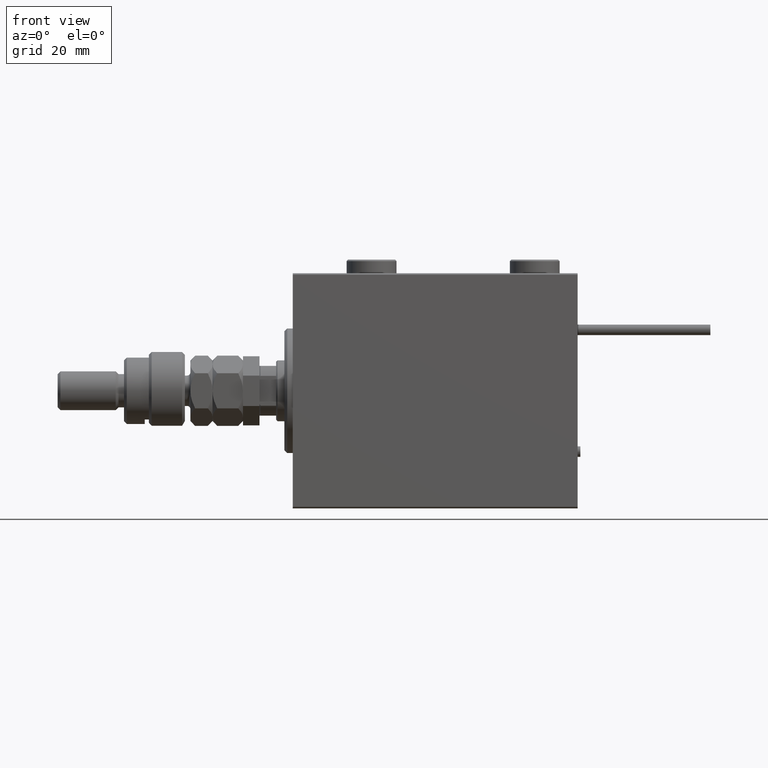
[diagram: clean part render]
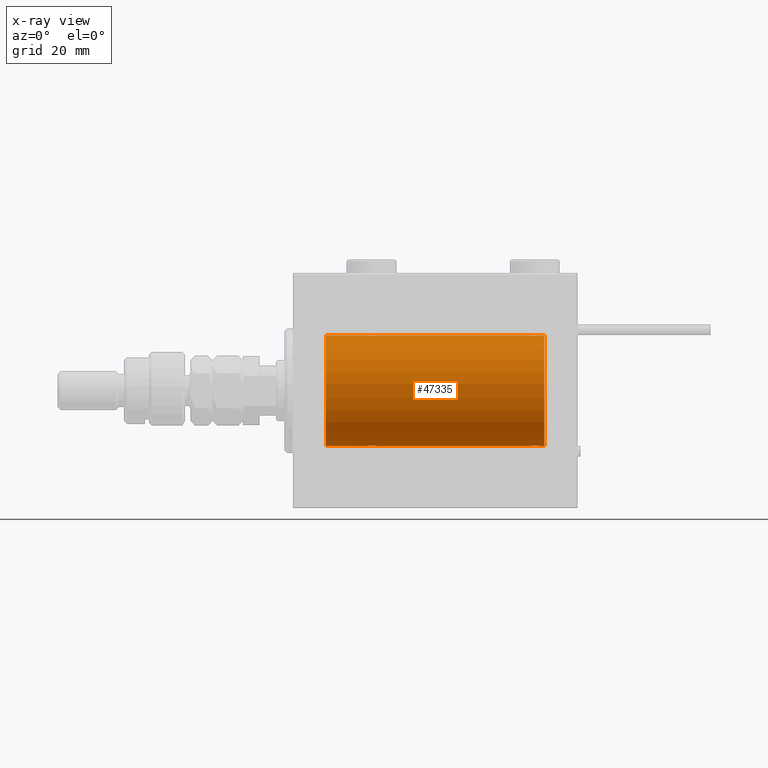
[diagram: x-ray — body ghosted, one internal face saturated and labeled with its STEP entity id]
A machine part, front view, then the same camera in x-ray: the body is ghosted and one INTERNAL B-rep face — a face not visible from any outside direction — is saturated and labeled: STEP entity #47335.
In plain terms, the highlighted cylindrical surface (partial cylindrical patch) has radius 20 mm, axis along (-1, -0, -0).
Its self-contained STEP definition (entity closure, byte-faithful):
#920 = ORIENTED_EDGE ( 'NONE', *, *, #18101, .T. ) ;
#1893 = DIRECTION ( 'NONE',  ( -1.000000000000000000, -0.000000000000000000, -0.000000000000000000 ) ) ;
#1895 = CARTESIAN_POINT ( 'NONE',  ( 27.49932780860757475, -1.736582545981376180, -19.92459705242981371 ) ) ;
#2260 = VERTEX_POINT ( 'NONE', #44633 ) ;
#2419 = CARTESIAN_POINT ( 'NONE',  ( 91.00000000000000000, 2.449293598294706513E-15, -20.00000000000000000 ) ) ;
#2456 = CARTESIAN_POINT ( 'NONE',  ( 26.55320515808203297, -0.5270924491156698810, -19.99450181871976184 ) ) ;
#2877 = CARTESIAN_POINT ( 'NONE',  ( 27.85369326075355545, -1.897222639860597360, 19.90987429971497491 ) ) ;
#3100 = CARTESIAN_POINT ( 'NONE',  ( 89.44755062882506991, -0.5243189001514980685, -19.99457699142850231 ) ) ;
#3155 = CARTESIAN_POINT ( 'NONE',  ( 28.36634803857552001, -1.999898234284063436, 19.89975896996866211 ) ) ;
#3205 = CARTESIAN_POINT ( 'NONE',  ( 88.38579076670728796, -1.797933656607910713, 19.91908554465557657 ) ) ;
#3327 = B_SPLINE_CURVE_WITH_KNOTS ( 'NONE', 3,
 ( #42328, #29172, #24151, #15752, #46267, #41226, #54123, #32839, #3978, #2877, #16579, #49908, #3155, #7898, #33395, #16848, #20217, #45434, #11548, #37862, #28620, #7362, #3429, #28902, #50181, #29446 ),
 .UNSPECIFIED., .F., .F.,
 ( 4, 2, 2, 2, 2, 2, 2, 2, 2, 2, 2, 2, 4 ),
 ( 0.006256819553329811059, 0.007038738568778783733, 0.007820657584227756406, 0.008211617091952238406, 0.008602576599676722141, 0.008993536107401204141, 0.009384495615125686141, 0.009775455122850168141, 0.01016641463057465014, 0.01055737413829913214, 0.01094833364602361414, 0.01173025266147257814, 0.01251217167692154214 ),
 .UNSPECIFIED. ) ;
#3429 = CARTESIAN_POINT ( 'NONE',  ( 30.24686976303072328, -1.008108445278687926, 19.97602680192586888 ) ) ;
#3504 = CARTESIAN_POINT ( 'NONE',  ( 89.50000000000000000, 9.984436361108698300E-16, 20.00000000000000000 ) ) ;
#3751 = CARTESIAN_POINT ( 'NONE',  ( 89.44679484191794927, -0.5270924491156651071, 19.99450181871975829 ) ) ;
#3978 = CARTESIAN_POINT ( 'NONE',  ( 27.61170562792909422, -1.796691196322319994, 19.91919800395357143 ) ) ;
#4026 = CARTESIAN_POINT ( 'NONE',  ( 86.17693331080532460, -1.505486175075777311, 19.94347168299868045 ) ) ;
#4449 = CARTESIAN_POINT ( 'NONE',  ( 30.50000000000000000, 2.449293582768389958E-15, -20.00000000000000000 ) ) ;
#4960 = ORIENTED_EDGE ( 'NONE', *, *, #46706, .T. ) ;
#5828 = CARTESIAN_POINT ( 'NONE',  ( 28.23922743968432059, -1.987205673487808966, -19.90104673894211018 ) ) ;
#6227 = VECTOR ( 'NONE', #1893, 1000.000000000000000 ) ;
#6378 = CARTESIAN_POINT ( 'NONE',  ( 28.36941128289166159, -2.000100592782553921, -19.89973863218036598 ) ) ;
#6746 = FACE_OUTER_BOUND ( 'NONE', #47950, .T. ) ;
#7155 = CARTESIAN_POINT ( 'NONE',  ( 11.99999999999999645, 0.000000000000000000, 0.000000000000000000 ) ) ;
#7304 = CARTESIAN_POINT ( 'NONE',  ( 88.01923512135279282, -1.935816449315129750, -19.90611141657401362 ) ) ;
#7362 = CARTESIAN_POINT ( 'NONE',  ( 30.09774691554730097, -1.230936344679278482, 19.96293863536309132 ) ) ;
#7412 = CARTESIAN_POINT ( 'NONE',  ( 88.50067219139242525, -1.736582545981368852, 19.92459705242980661 ) ) ;
#7848 = CARTESIAN_POINT ( 'NONE',  ( 30.50000000000000000, -4.014971335008767791E-15, 20.00000000000000000 ) ) ;
#7850 = CARTESIAN_POINT ( 'NONE',  ( 89.50000000000000000, 2.449293582762473501E-15, -20.00000000000000000 ) ) ;
#7898 = CARTESIAN_POINT ( 'NONE',  ( 28.63058871710834552, -2.000100592782553921, 19.89973863218035888 ) ) ;
#8699 = VERTEX_POINT ( 'NONE', #31203 ) ;
#9578 = VECTOR ( 'NONE', #19982, 1000.000000000000000 ) ;
#10023 = CARTESIAN_POINT ( 'NONE',  ( 27.61420923329272981, -1.797933656607917596, -19.91908554465558367 ) ) ;
#10849 = CARTESIAN_POINT ( 'NONE',  ( 91.00000000000000000, 0.000000000000000000, 20.00000000000000000 ) ) ;
#10859 = VERTEX_POINT ( 'NONE', #53214 ) ;
#11117 = EDGE_CURVE ( 'NONE', #30265, #39022, #45021, .T. ) ;
#11135 = CARTESIAN_POINT ( 'NONE',  ( 29.14630673924643744, -1.897222639860594029, -19.90987429971496780 ) ) ;
#11221 = CARTESIAN_POINT ( 'NONE',  ( 87.36941128289164737, -2.000100592782561471, -19.89973863218036243 ) ) ;
#11344 = DIRECTION ( 'NONE',  ( 0.000000000000000000, 0.000000000000000000, 1.000000000000000000 ) ) ;
#11441 = B_SPLINE_CURVE_WITH_KNOTS ( 'NONE', 3,
 ( #4449, #21517, #38606, #27932, #24007, #40247, #14506, #40795, #45015, #11135, #36336, #31857, #36059, #6378, #5828, #23730, #15326, #10023, #1895, #35777, #53141, #41079, #49210, #2456, #19523, #36613 ),
 .UNSPECIFIED., .F., .F.,
 ( 4, 2, 2, 2, 2, 2, 2, 2, 2, 2, 2, 2, 4 ),
 ( 0.006256819553329842284, 0.007038738568778818427, 0.007820657584227792836, 0.008211617091952278305, 0.008602576599676762040, 0.008993536107401245774, 0.009384495615125729509, 0.009775455122850213244, 0.01016641463057469871, 0.01055737413829918071, 0.01094833364602366618, 0.01173025266147263365, 0.01251217167692159939 ),
 .UNSPECIFIED. ) ;
#11548 = CARTESIAN_POINT ( 'NONE',  ( 29.50067219139244656, -1.736582545981375292, 19.92459705242981371 ) ) ;
#11600 = CARTESIAN_POINT ( 'NONE',  ( 87.76077256031567231, -1.987205673487806967, 19.90104673894210663 ) ) ;
#11764 = CARTESIAN_POINT ( 'NONE',  ( 85.75313023696931225, -1.008108445278694587, -19.97602680192586888 ) ) ;
#11913 = LINE ( 'NONE', #2419, #16095 ) ;
#12083 = VERTEX_POINT ( 'NONE', #39441 ) ;
#12157 = CARTESIAN_POINT ( 'NONE',  ( 89.09774691554730452, -1.230936344679272043, 19.96293863536309487 ) ) ;
#12212 = EDGE_CURVE ( 'NONE', #30265, #33383, #47322, .T. ) ;
#13279 = EDGE_CURVE ( 'NONE', #52526, #43224, #31297, .T. ) ;
#13503 = ORIENTED_EDGE ( 'NONE', *, *, #37051, .T. ) ;
#14506 = CARTESIAN_POINT ( 'NONE',  ( 29.72028945794465571, -1.589957321664208223, -19.93683391378736047 ) ) ;
#14992 = ORIENTED_EDGE ( 'NONE', *, *, #38965, .T. ) ;
#15326 = CARTESIAN_POINT ( 'NONE',  ( 27.85651471266959334, -1.898187925611338533, -19.90978194174746818 ) ) ;
#15421 = CARTESIAN_POINT ( 'NONE',  ( 88.72028945794461663, -1.589957321664213330, -19.93683391378736758 ) ) ;
#15535 = CARTESIAN_POINT ( 'NONE',  ( 86.98076487864722139, -1.935816449315123977, 19.90611141657402072 ) ) ;
#15752 = CARTESIAN_POINT ( 'NONE',  ( 26.75174086539981033, -1.005710574260841206, 19.97614991974274190 ) ) ;
#15808 = CARTESIAN_POINT ( 'NONE',  ( 86.27971054205535495, -1.589957321664204448, 19.93683391378736403 ) ) ;
#15972 = CARTESIAN_POINT ( 'NONE',  ( 86.98351467081094768, -1.936551476643015191, -19.90603968831098669 ) ) ;
#16095 = VECTOR ( 'NONE', #19485, 1000.000000000000000 ) ;
#16525 = CARTESIAN_POINT ( 'NONE',  ( 85.50000000000001421, -0.2644051013331136790, -20.00000000000000355 ) ) ;
#16534 = CIRCLE ( 'NONE', #23687, 20.00000000000000000 ) ;
#16579 = CARTESIAN_POINT ( 'NONE',  ( 27.98076487864722495, -1.935816449315125087, 19.90611141657401362 ) ) ;
#16799 = CARTESIAN_POINT ( 'NONE',  ( 89.50000000000000000, 2.449293582762473501E-15, -20.00000000000000000 ) ) ;
#16848 = CARTESIAN_POINT ( 'NONE',  ( 29.01648532918905943, -1.936551476643006753, 19.90603968831098669 ) ) ;
#16890 = AXIS2_PLACEMENT_3D ( 'NONE', #22301, #48068, #43859 ) ;
#17399 = VERTEX_POINT ( 'NONE', #3504 ) ;
#18101 = EDGE_CURVE ( 'NONE', #2260, #10859, #11913, .T. ) ;
#19405 = ORIENTED_EDGE ( 'NONE', *, *, #12212, .F. ) ;
#19485 = DIRECTION ( 'NONE',  ( -1.000000000000000000, -0.000000000000000000, -0.000000000000000000 ) ) ;
#19523 = CARTESIAN_POINT ( 'NONE',  ( 26.50000000000001066, -0.2644051013331030209, -20.00000000000000355 ) ) ;
#19982 = DIRECTION ( 'NONE',  ( -1.000000000000000000, -0.000000000000000000, -0.000000000000000000 ) ) ;
#20001 = CARTESIAN_POINT ( 'NONE',  ( 85.49999999999998579, -1.553188236289650144E-23, 20.00000000000000000 ) ) ;
#20167 = CARTESIAN_POINT ( 'NONE',  ( 87.63365196142450486, -1.999898234284069432, -19.89975896996866211 ) ) ;
#20217 = CARTESIAN_POINT ( 'NONE',  ( 29.14348528733041377, -1.898187925611340088, 19.90978194174746818 ) ) ;
#20272 = CARTESIAN_POINT ( 'NONE',  ( 88.71805419472150334, -1.591668229360190034, 19.93669678979813042 ) ) ;
#20429 = CARTESIAN_POINT ( 'NONE',  ( 91.00000000000000000, 0.000000000000000000, 20.00000000000000000 ) ) ;
#21517 = CARTESIAN_POINT ( 'NONE',  ( 30.49999999999999645, -0.2610801504281900498, -19.99999999999999645 ) ) ;
#21944 = B_SPLINE_CURVE_WITH_KNOTS ( 'NONE', 3,
 ( #7850, #45382, #3100, #33340, #54341, #50128, #15421, #37528, #32505, #49581, #7304, #24374, #20167, #11221, #37812, #15972, #24100, #24922, #40894, #54898, #28567, #33054, #11764, #28844, #16525, #36977 ),
 .UNSPECIFIED., .F., .F.,
 ( 4, 2, 2, 2, 2, 2, 2, 2, 2, 2, 2, 2, 4 ),
 ( 0.006256819553329824070, 0.007038738568778795009, 0.007820657584227765080, 0.008211617091952250549, 0.008602576599676736019, 0.008993536107401221488, 0.009384495615125706958, 0.009775455122850190692, 0.01016641463057467790, 0.01055737413829916163, 0.01094833364602364884, 0.01173025266147261630, 0.01251217167692158724 ),
 .UNSPECIFIED. ) ;
#22301 = CARTESIAN_POINT ( 'NONE',  ( 91.00000000000000000, 0.000000000000000000, 0.000000000000000000 ) ) ;
#22851 = DIRECTION ( 'NONE',  ( -1.000000000000000000, -0.000000000000000000, -0.000000000000000000 ) ) ;
#23653 = ORIENTED_EDGE ( 'NONE', *, *, #11117, .T. ) ;
#23687 = AXIS2_PLACEMENT_3D ( 'NONE', #7155, #49705, #11344 ) ;
#23730 = CARTESIAN_POINT ( 'NONE',  ( 27.98351467081095123, -1.936551476643005198, -19.90603968831098314 ) ) ;
#23813 = CYLINDRICAL_SURFACE ( 'NONE', #37999, 20.00000000000000000 ) ;
#24007 = CARTESIAN_POINT ( 'NONE',  ( 30.09941524884030173, -1.228758402364235502, -19.96307487248084911 ) ) ;
#24100 = CARTESIAN_POINT ( 'NONE',  ( 86.85651471266957913, -1.898187925611348081, -19.90978194174746818 ) ) ;
#24151 = CARTESIAN_POINT ( 'NONE',  ( 26.55244937117492299, -0.5243189001515023984, 19.99457699142850586 ) ) ;
#24374 = CARTESIAN_POINT ( 'NONE',  ( 87.76358144091418012, -1.986835489085820639, -19.90108393514801222 ) ) ;
#24752 = CARTESIAN_POINT ( 'NONE',  ( 86.85369326075358742, -1.897222639860597360, 19.90987429971497491 ) ) ;
#24922 = CARTESIAN_POINT ( 'NONE',  ( 86.61420923329271204, -1.797933656607926700, -19.91908554465557302 ) ) ;
#25074 = EDGE_CURVE ( 'NONE', #52526, #17399, #54900, .T. ) ;
#27042 = ORIENTED_EDGE ( 'NONE', *, *, #49058, .F. ) ;
#27096 = VERTEX_POINT ( 'NONE', #45106 ) ;
#27790 = VERTEX_POINT ( 'NONE', #29291 ) ;
#27932 = CARTESIAN_POINT ( 'NONE',  ( 30.24825913460018612, -1.005710574260838985, -19.97614991974274190 ) ) ;
#28423 = ORIENTED_EDGE ( 'NONE', *, *, #25074, .T. ) ;
#28567 = CARTESIAN_POINT ( 'NONE',  ( 86.17903093152710881, -1.507328959728500006, -19.94333197382386302 ) ) ;
#28620 = CARTESIAN_POINT ( 'NONE',  ( 29.82096906847289119, -1.507328959728493567, 19.94333197382385592 ) ) ;
#28671 = CARTESIAN_POINT ( 'NONE',  ( 88.01648532918903811, -1.936551476643001202, 19.90603968831098669 ) ) ;
#28844 = CARTESIAN_POINT ( 'NONE',  ( 85.55320515808205073, -0.5270924491156777636, -19.99450181871976540 ) ) ;
#28902 = CARTESIAN_POINT ( 'NONE',  ( 30.44679484191797414, -0.5270924491156706582, 19.99450181871975829 ) ) ;
#28954 = CARTESIAN_POINT ( 'NONE',  ( 89.24686976303071617, -1.008108445278681931, 19.97602680192586178 ) ) ;
#29045 = ORIENTED_EDGE ( 'NONE', *, *, #47099, .T. ) ;
#29172 = CARTESIAN_POINT ( 'NONE',  ( 26.50000000000000711, -0.2610801504281929919, 20.00000000000000000 ) ) ;
#29230 = CARTESIAN_POINT ( 'NONE',  ( 89.50000000000000000, 9.984436361108698300E-16, 20.00000000000000000 ) ) ;
#29291 = CARTESIAN_POINT ( 'NONE',  ( 85.49999999999998579, -1.207436508668459186E-14, -20.00000000000000000 ) ) ;
#29446 = CARTESIAN_POINT ( 'NONE',  ( 30.50000000000000000, -4.014971335008767791E-15, 20.00000000000000000 ) ) ;
#30265 = VERTEX_POINT ( 'NONE', #31673 ) ;
#31103 = DIRECTION ( 'NONE',  ( 0.000000000000000000, 0.000000000000000000, 1.000000000000000000 ) ) ;
#31203 = CARTESIAN_POINT ( 'NONE',  ( 11.99999999999999645, 0.000000000000000000, 20.00000000000000000 ) ) ;
#31297 = LINE ( 'NONE', #10849, #6227 ) ;
#31668 = DIRECTION ( 'NONE',  ( -1.000000000000000000, -0.000000000000000000, -0.000000000000000000 ) ) ;
#31673 = CARTESIAN_POINT ( 'NONE',  ( 91.00000000000000000, 2.449293598294706513E-15, -20.00000000000000000 ) ) ;
#31857 = CARTESIAN_POINT ( 'NONE',  ( 28.76358144091416236, -1.986835489085814199, -19.90108393514801222 ) ) ;
#32505 = CARTESIAN_POINT ( 'NONE',  ( 88.38829437207088802, -1.796691196322323103, -19.91919800395357143 ) ) ;
#32725 = VECTOR ( 'NONE', #22851, 1000.000000000000000 ) ;
#32839 = CARTESIAN_POINT ( 'NONE',  ( 27.49693443660397918, -1.735203193119897902, 19.92471783160911158 ) ) ;
#32894 = CARTESIAN_POINT ( 'NONE',  ( 87.36634803857553777, -1.999898234284061216, 19.89975896996866922 ) ) ;
#33054 = CARTESIAN_POINT ( 'NONE',  ( 85.90225308445272390, -1.230936344679285144, -19.96293863536309843 ) ) ;
#33340 = CARTESIAN_POINT ( 'NONE',  ( 89.24825913460018967, -1.005710574260839651, -19.97614991974274901 ) ) ;
#33383 = VERTEX_POINT ( 'NONE', #44848 ) ;
#33395 = CARTESIAN_POINT ( 'NONE',  ( 28.76077256031567586, -1.987205673487810298, 19.90104673894210663 ) ) ;
#34399 = CARTESIAN_POINT ( 'NONE',  ( 85.49999999999998579, -1.553188236289650144E-23, 20.00000000000000000 ) ) ;
#35777 = CARTESIAN_POINT ( 'NONE',  ( 27.28194580527848601, -1.591668229360197140, -19.93669678979812332 ) ) ;
#36059 = CARTESIAN_POINT ( 'NONE',  ( 28.63365196142448355, -1.999898234284062992, -19.89975896996866211 ) ) ;
#36336 = CARTESIAN_POINT ( 'NONE',  ( 29.01923512135276795, -1.935816449315124643, -19.90611141657401717 ) ) ;
#36343 = DIRECTION ( 'NONE',  ( -1.000000000000000000, -0.000000000000000000, -0.000000000000000000 ) ) ;
#36613 = CARTESIAN_POINT ( 'NONE',  ( 26.50000000000000355, -3.809869420541414000E-15, -20.00000000000000000 ) ) ;
#36977 = CARTESIAN_POINT ( 'NONE',  ( 85.49999999999998579, -1.207436508668459186E-14, -20.00000000000000000 ) ) ;
#37051 = EDGE_CURVE ( 'NONE', #27096, #2260, #11441, .T. ) ;
#37360 = CARTESIAN_POINT ( 'NONE',  ( 88.82096906847289119, -1.507328959728488238, 19.94333197382385947 ) ) ;
#37528 = CARTESIAN_POINT ( 'NONE',  ( 88.50306556339602082, -1.735203193119900122, -19.92471783160911158 ) ) ;
#37636 = CARTESIAN_POINT ( 'NONE',  ( 86.61170562792906935, -1.796691196322320216, 19.91919800395356788 ) ) ;
#37812 = CARTESIAN_POINT ( 'NONE',  ( 87.23922743968432769, -1.987205673487818514, -19.90104673894210663 ) ) ;
#37862 = CARTESIAN_POINT ( 'NONE',  ( 29.71805419472152110, -1.591668229360196252, 19.93669678979812332 ) ) ;
#37999 = AXIS2_PLACEMENT_3D ( 'NONE', #44265, #31668, #31103 ) ;
#38183 = CARTESIAN_POINT ( 'NONE',  ( 85.75174086539982454, -1.005710574260841872, 19.97614991974274190 ) ) ;
#38606 = CARTESIAN_POINT ( 'NONE',  ( 30.44755062882508412, -0.5243189001514996228, -19.99457699142849876 ) ) ;
#38965 = EDGE_CURVE ( 'NONE', #39022, #27790, #21944, .T. ) ;
#39022 = VERTEX_POINT ( 'NONE', #16799 ) ;
#39441 = CARTESIAN_POINT ( 'NONE',  ( 26.50000000000000355, -1.552596590610734385E-23, 20.00000000000000000 ) ) ;
#40209 = LINE ( 'NONE', #43322, #32725 ) ;
#40247 = CARTESIAN_POINT ( 'NONE',  ( 29.82306668919470383, -1.505486175075772870, -19.94347168299867334 ) ) ;
#40634 = ORIENTED_EDGE ( 'NONE', *, *, #13279, .F. ) ;
#40795 = CARTESIAN_POINT ( 'NONE',  ( 29.50306556339602437, -1.735203193119894349, -19.92471783160910803 ) ) ;
#40894 = CARTESIAN_POINT ( 'NONE',  ( 86.49932780860756054, -1.736582545981379289, -19.92459705242981016 ) ) ;
#41079 = CARTESIAN_POINT ( 'NONE',  ( 26.90225308445269903, -1.230936344679278260, -19.96293863536309132 ) ) ;
#41087 = CARTESIAN_POINT ( 'NONE',  ( 91.00000000000000000, 2.449293598294706513E-15, -20.00000000000000000 ) ) ;
#41226 = CARTESIAN_POINT ( 'NONE',  ( 27.17693331080528907, -1.505486175075773758, 19.94347168299867690 ) ) ;
#41542 = LINE ( 'NONE', #46298, #9578 ) ;
#41562 = CARTESIAN_POINT ( 'NONE',  ( 85.50000000000000000, -0.2610801504281927699, 20.00000000000000355 ) ) ;
#42102 = CARTESIAN_POINT ( 'NONE',  ( 85.55244937117494430, -0.5243189001515019543, 19.99457699142849876 ) ) ;
#42328 = CARTESIAN_POINT ( 'NONE',  ( 26.50000000000000355, -1.552596590610734385E-23, 20.00000000000000000 ) ) ;
#42970 = ORIENTED_EDGE ( 'NONE', *, *, #52026, .T. ) ;
#43224 = VERTEX_POINT ( 'NONE', #7848 ) ;
#43322 = CARTESIAN_POINT ( 'NONE',  ( 91.00000000000000000, 0.000000000000000000, 20.00000000000000000 ) ) ;
#43859 = DIRECTION ( 'NONE',  ( 0.000000000000000000, 0.000000000000000000, 1.000000000000000000 ) ) ;
#44265 = CARTESIAN_POINT ( 'NONE',  ( 91.00000000000000000, 0.000000000000000000, 0.000000000000000000 ) ) ;
#44633 = CARTESIAN_POINT ( 'NONE',  ( 26.50000000000000355, -3.809869420541414000E-15, -20.00000000000000000 ) ) ;
#44848 = CARTESIAN_POINT ( 'NONE',  ( 91.00000000000000000, 0.000000000000000000, 20.00000000000000000 ) ) ;
#45015 = CARTESIAN_POINT ( 'NONE',  ( 29.38829437207091999, -1.796691196322316664, -19.91919800395357143 ) ) ;
#45021 = LINE ( 'NONE', #41087, #55324 ) ;
#45106 = CARTESIAN_POINT ( 'NONE',  ( 30.50000000000000000, 2.449293582768389958E-15, -20.00000000000000000 ) ) ;
#45150 = VECTOR ( 'NONE', #54334, 1000.000000000000000 ) ;
#45382 = CARTESIAN_POINT ( 'NONE',  ( 89.50000000000001421, -0.2610801504281911045, -19.99999999999999645 ) ) ;
#45434 = CARTESIAN_POINT ( 'NONE',  ( 29.38579076670729151, -1.797933656607919817, 19.91908554465558367 ) ) ;
#45487 = CARTESIAN_POINT ( 'NONE',  ( 87.23641855908589093, -1.986835489085812867, 19.90108393514801577 ) ) ;
#45764 = CARTESIAN_POINT ( 'NONE',  ( 88.14348528733044930, -1.898187925611334315, 19.90978194174746818 ) ) ;
#46267 = CARTESIAN_POINT ( 'NONE',  ( 26.90058475115969827, -1.228758402364236391, 19.96307487248084556 ) ) ;
#46298 = CARTESIAN_POINT ( 'NONE',  ( 91.00000000000000000, 2.449293598294706513E-15, -20.00000000000000000 ) ) ;
#46706 = EDGE_CURVE ( 'NONE', #10859, #8699, #16534, .T. ) ;
#47099 = EDGE_CURVE ( 'NONE', #12083, #43224, #3327, .T. ) ;
#47322 = CIRCLE ( 'NONE', #16890, 20.00000000000000000 ) ;
#47335 = ADVANCED_FACE ( 'NONE', ( #6746 ), #23813, .F. ) ;
#47381 = EDGE_CURVE ( 'NONE', #12083, #8699, #49848, .T. ) ;
#47950 = EDGE_LOOP ( 'NONE', ( #19405, #23653, #14992, #42970, #13503, #920, #4960, #48620, #29045, #40634, #28423, #27042 ) ) ;
#48068 = DIRECTION ( 'NONE',  ( -1.000000000000000000, 0.000000000000000000, 0.000000000000000000 ) ) ;
#48620 = ORIENTED_EDGE ( 'NONE', *, *, #47381, .F. ) ;
#49058 = EDGE_CURVE ( 'NONE', #33383, #17399, #40209, .T. ) ;
#49210 = CARTESIAN_POINT ( 'NONE',  ( 26.75313023696928738, -1.008108445278687704, -19.97602680192586533 ) ) ;
#49581 = CARTESIAN_POINT ( 'NONE',  ( 88.14630673924646942, -1.897222639860602245, -19.90987429971496425 ) ) ;
#49705 = DIRECTION ( 'NONE',  ( -1.000000000000000000, 0.000000000000000000, 0.000000000000000000 ) ) ;
#49848 = LINE ( 'NONE', #20429, #45150 ) ;
#49908 = CARTESIAN_POINT ( 'NONE',  ( 28.23641855908585541, -1.986835489085814643, 19.90108393514801222 ) ) ;
#49961 = CARTESIAN_POINT ( 'NONE',  ( 87.63058871710828157, -2.000100592782551256, 19.89973863218035888 ) ) ;
#50128 = CARTESIAN_POINT ( 'NONE',  ( 88.82306668919471804, -1.505486175075774646, -19.94347168299867334 ) ) ;
#50181 = CARTESIAN_POINT ( 'NONE',  ( 30.49999999999999289, -0.2644051013330969702, 20.00000000000000711 ) ) ;
#50233 = CARTESIAN_POINT ( 'NONE',  ( 85.90058475115969827, -1.228758402364240609, 19.96307487248084911 ) ) ;
#50509 = CARTESIAN_POINT ( 'NONE',  ( 86.49693443660396497, -1.735203193119890352, 19.92471783160910803 ) ) ;
#52026 = EDGE_CURVE ( 'NONE', #27790, #27096, #41542, .T. ) ;
#52526 = VERTEX_POINT ( 'NONE', #34399 ) ;
#53141 = CARTESIAN_POINT ( 'NONE',  ( 27.17903093152710525, -1.507328959728492457, -19.94333197382385592 ) ) ;
#53214 = CARTESIAN_POINT ( 'NONE',  ( 11.99999999999999645, 2.449293598294706513E-15, -20.00000000000000000 ) ) ;
#54123 = CARTESIAN_POINT ( 'NONE',  ( 27.27971054205535850, -1.589957321664211998, 19.93683391378736047 ) ) ;
#54334 = DIRECTION ( 'NONE',  ( -1.000000000000000000, -0.000000000000000000, -0.000000000000000000 ) ) ;
#54341 = CARTESIAN_POINT ( 'NONE',  ( 89.09941524884030173, -1.228758402364235724, -19.96307487248084556 ) ) ;
#54448 = CARTESIAN_POINT ( 'NONE',  ( 89.49999999999998579, -0.2644051013330985245, 19.99999999999999645 ) ) ;
#54898 = CARTESIAN_POINT ( 'NONE',  ( 86.28194580527849666, -1.591668229360199804, -19.93669678979812687 ) ) ;
#54900 = B_SPLINE_CURVE_WITH_KNOTS ( 'NONE', 3,
 ( #20001, #41562, #42102, #38183, #50233, #4026, #15808, #50509, #37636, #24752, #15535, #45487, #32894, #49961, #11600, #28671, #45764, #3205, #7412, #20272, #37360, #12157, #28954, #3751, #54448, #29230 ),
 .UNSPECIFIED., .F., .F.,
 ( 4, 2, 2, 2, 2, 2, 2, 2, 2, 2, 2, 2, 4 ),
 ( 0.006256819553329836213, 0.007038738568778784600, 0.007820657584227733855, 0.008211617091952222794, 0.008602576599676711733, 0.008993536107401198937, 0.009384495615125687876, 0.009775455122850176815, 0.01016641463057466402, 0.01055737413829915296, 0.01094833364602364190, 0.01173025266147261630, 0.01251217167692159418 ),
 .UNSPECIFIED. ) ;
#55324 = VECTOR ( 'NONE', #36343, 1000.000000000000000 ) ;